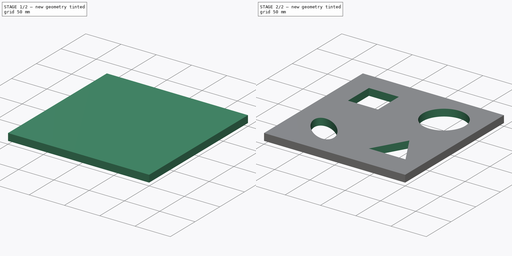
[diagram: build sequence overview — one tinted view per stage of 2, left to right]
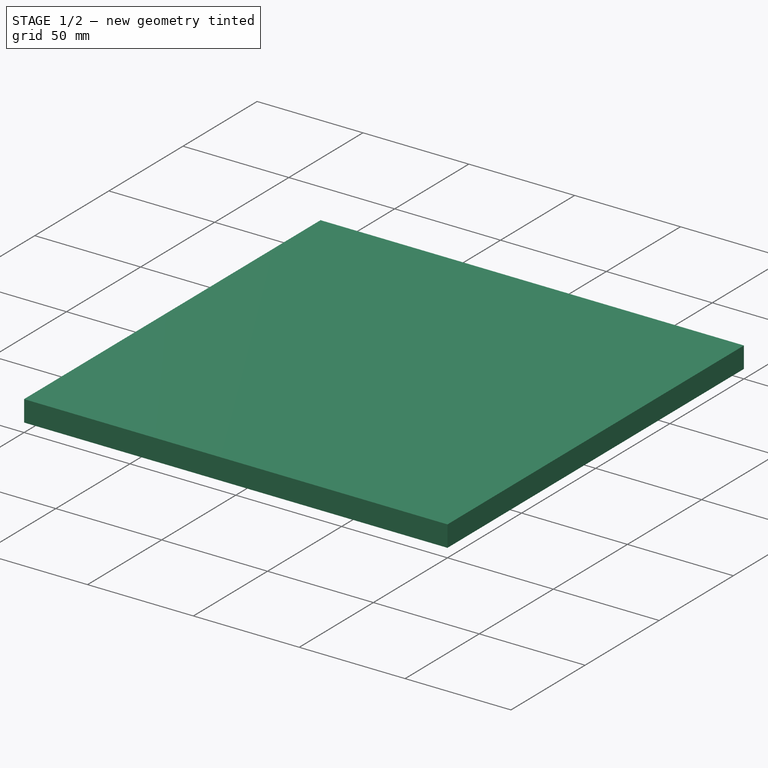
[diagram: stage 1 of 2 — iso view after this stage's code; geometry added in this stage tinted green]
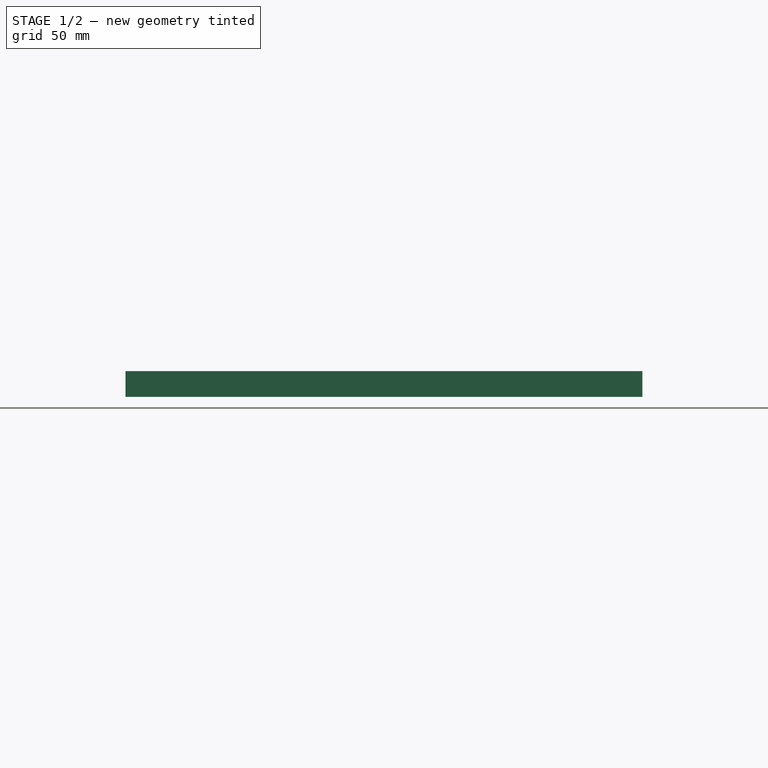
[diagram: stage 1 of 2 — front view after this stage's code; geometry added in this stage tinted green]
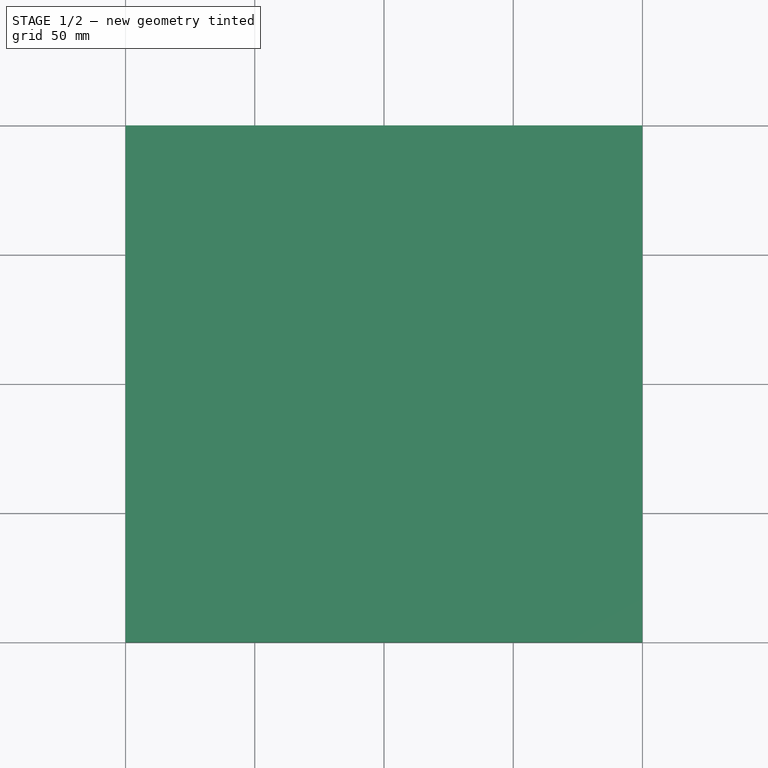
[diagram: stage 1 of 2 — top view after this stage's code; geometry added in this stage tinted green]
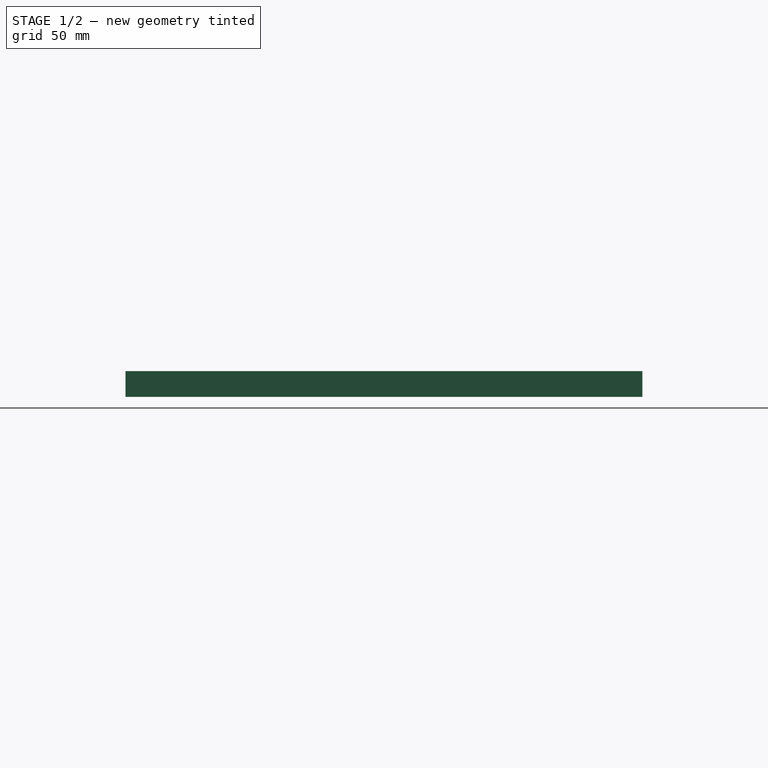
[diagram: stage 1 of 2 — right view after this stage's code; geometry added in this stage tinted green]
FCSTD DOCUMENT  (FreeCAD 0.18R16096 (Git))
Label: Profile2
License: CreativeCommons Attribution
LicenseURL: http://creativecommons.org/licenses/by/4.0/
objects: Sketcher::SketchObject×2, PartDesign::Pad×1, PartDesign::Pocket×1, PartDesign::Body×1
note: 7 computed .brp shape members not serialized (recipe doc carries the construction recipe); baked Part::Feature solids carry a one-line shape summary decoded from their .brp

FEATURE [Sketcher::SketchObject] Sketch
  MapMode = 5
  Support = -> [XY_Plane]
  sketch-geometry (4):
    g0: LineSegment StartX=-100 StartY=100 StartZ=0 EndX=100 EndY=100 EndZ=0
    g1: LineSegment StartX=100 StartY=100 StartZ=0 EndX=100 EndY=-100 EndZ=0
    g2: LineSegment StartX=100 StartY=-100 StartZ=0 EndX=-100 EndY=-100 EndZ=0
    g3: LineSegment StartX=-100 StartY=-100 StartZ=0 EndX=-100 EndY=100 EndZ=0
  constraints (11):
    c: Coincident(g0,g1)
    c: Coincident(g1,g2)
    c: Coincident(g2,g3)
    c: Coincident(g3,g0)
    c: Horizontal(g0)
    c: Horizontal(g2)
    c: Vertical(g1)
    c: Vertical(g3)
    c: Symmetric(g0,g1,g-1)
    c: Equal(g0,g3)
    c: DistanceX(g0,g0) = 200
FEATURE [PartDesign::Pad] Pad
  Length = 10
  Length2 = 100
  Profile = -> Sketch
  Type = 0
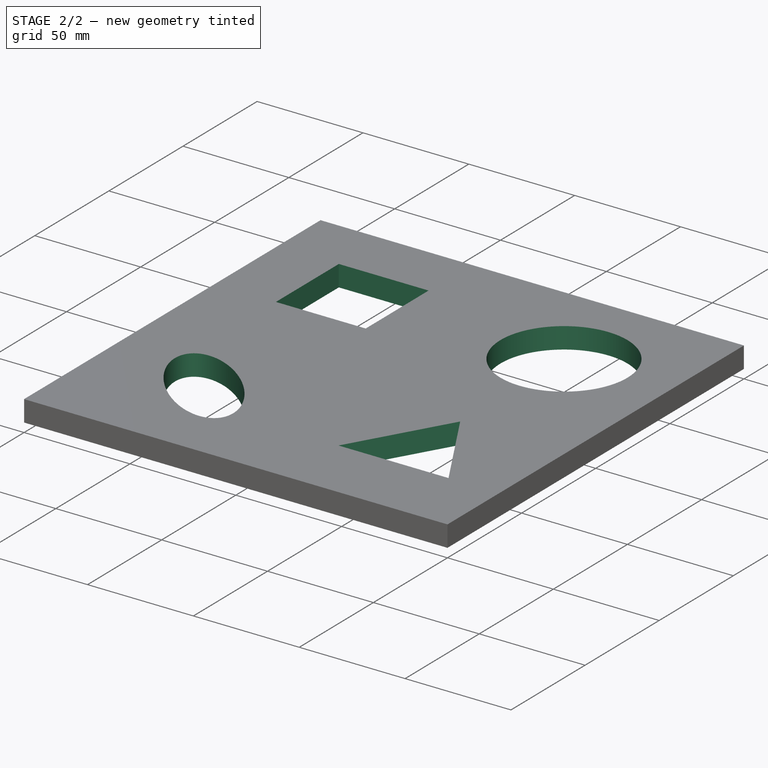
[diagram: stage 2 of 2 — iso view after this stage's code; geometry added in this stage tinted green]
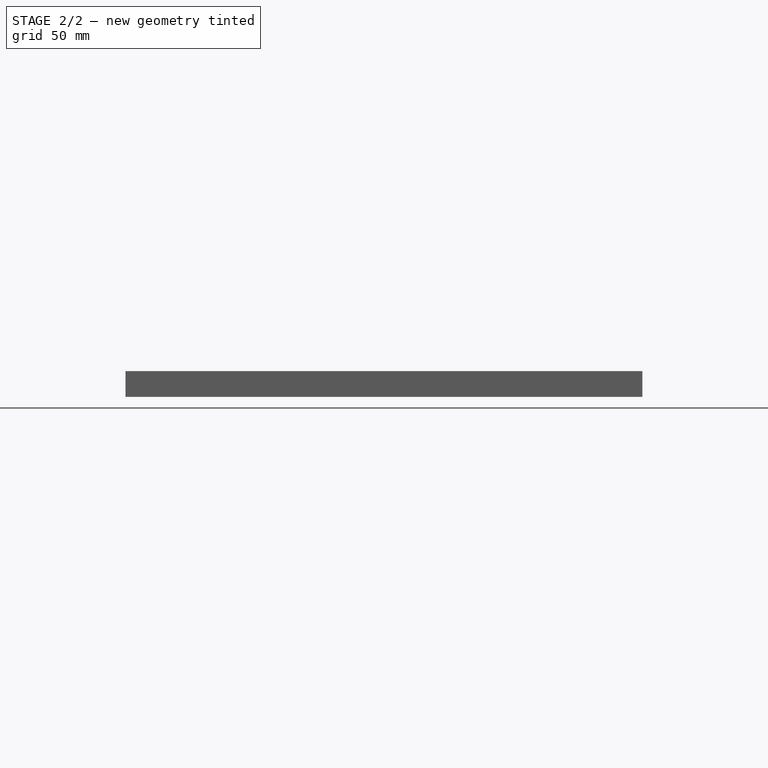
[diagram: stage 2 of 2 — front view after this stage's code; geometry added in this stage tinted green]
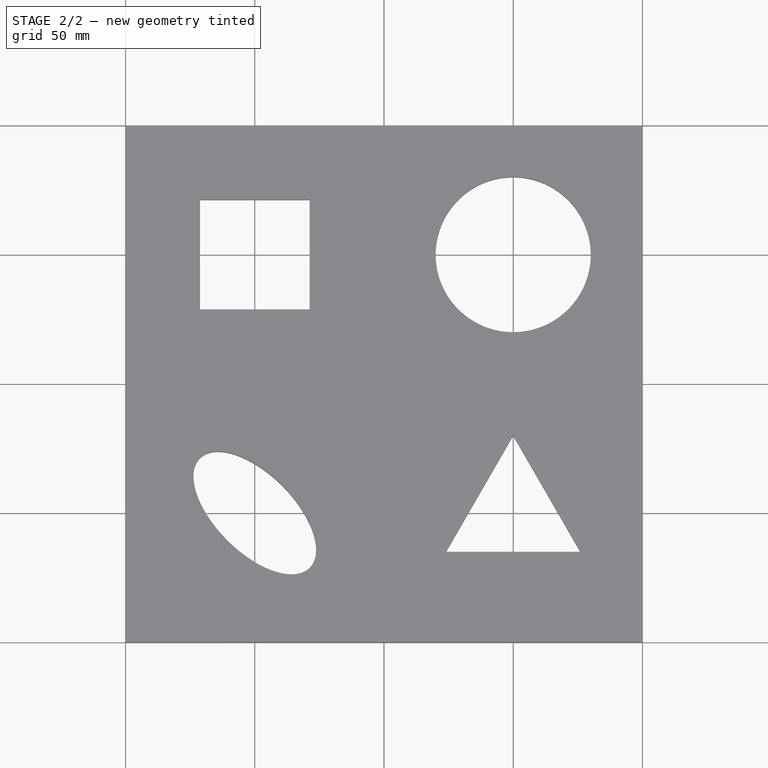
[diagram: stage 2 of 2 — top view after this stage's code; geometry added in this stage tinted green]
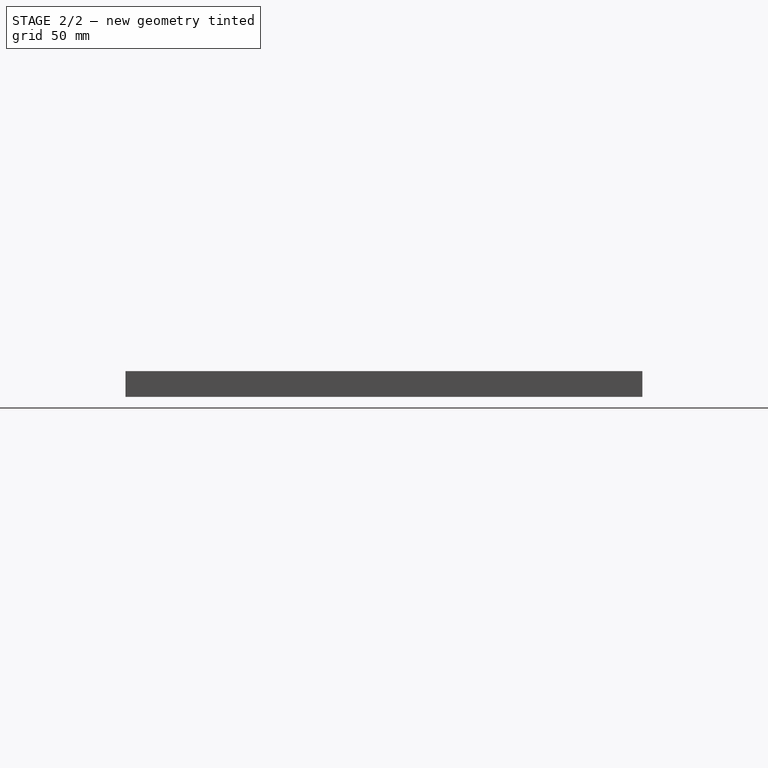
[diagram: stage 2 of 2 — right view after this stage's code; geometry added in this stage tinted green]
FEATURE [Sketcher::SketchObject] Sketch001
  MapMode = 5
  Placement = pos=(0,0,10) rot=(0,0,1;0rad)
  Support = -> [Pad]
  sketch-geometry (19):
    g0: Circle CenterX=50 CenterY=50 CenterZ=0 NormalX=0 NormalY=0 NormalZ=1 AngleXU=0 Radius=30
    g1: Ellipse CenterX=-50 CenterY=-50 CenterZ=0 NormalX=0 NormalY=0 NormalZ=1 MajorRadius=30 MinorRadius=15 AngleXU=-0.785398
    g2: LineSegment [constr] StartX=-28.7868 StartY=-71.2132 StartZ=0 EndX=-71.2132 EndY=-28.7868 EndZ=0
    g3: LineSegment [constr] StartX=-39.3934 StartY=-39.3934 StartZ=0 EndX=-60.6066 EndY=-60.6066 EndZ=0
    g4: GeomPoint X=-31.6288 Y=-68.3712 Z=0
    g5: GeomPoint X=-68.3712 Y=-31.6288 Z=0
    g6: LineSegment StartX=75.9808 StartY=-65 StartZ=0 EndX=50 EndY=-20 EndZ=0
    g7: LineSegment StartX=50 StartY=-20 StartZ=0 EndX=24.0192 EndY=-65 EndZ=0
    g8: LineSegment StartX=24.0192 StartY=-65 StartZ=0 EndX=75.9808 EndY=-65 EndZ=0
    g9: Circle [constr] CenterX=50 CenterY=-50 CenterZ=0 NormalX=0 NormalY=0 NormalZ=1 AngleXU=0 Radius=30
    g10: LineSegment StartX=-28.7868 StartY=28.7868 StartZ=0 EndX=-28.7868 EndY=71.2132 EndZ=0
    g11: LineSegment StartX=-28.7868 StartY=71.2132 StartZ=0 EndX=-71.2132 EndY=71.2132 EndZ=0
    g12: LineSegment StartX=-71.2132 StartY=71.2132 StartZ=0 EndX=-71.2132 EndY=28.7868 EndZ=0
    g13: LineSegment StartX=-71.2132 StartY=28.7868 StartZ=0 EndX=-28.7868 EndY=28.7868 EndZ=0
    g14: Circle [constr] CenterX=-50 CenterY=50 CenterZ=0 NormalX=0 NormalY=0 NormalZ=1 AngleXU=0 Radius=30
    g15: LineSegment [constr] StartX=-50 StartY=50 StartZ=0 EndX=50 EndY=50 EndZ=0
    g16: LineSegment [constr] StartX=50 StartY=50 StartZ=0 EndX=50 EndY=-50 EndZ=0
    g17: LineSegment [constr] StartX=50 StartY=-50 StartZ=0 EndX=-50 EndY=-50 EndZ=0
    g18: LineSegment [constr] StartX=-50 StartY=-50 StartZ=0 EndX=-50 EndY=50 EndZ=0
  constraints (43):
    c: InternalAlignment(g2-g5 -> g1) x4
    c: Coincident(g6,g7)
    c: Coincident(g7,g8)
    c: Coincident(g8,g6)
    c: Equal(g6,g7)
    c: Equal(g6,g8)
    c: PointOnObject(g6,g9)
    c: PointOnObject(g7,g9)
    c: PointOnObject(g8,g9)
    c: Equal(g9,g0)
    c: Coincident(g10,g11)
    c: Coincident(g11,g12)
    c: Coincident(g12,g13)
    c: Coincident(g13,g10)
    c: Equal(g10,g11)
    c: Equal(g10,g12)
    c: Equal(g10,g13)
    c: PointOnObject(g10,g14)
    c: PointOnObject(g11,g14)
    c: PointOnObject(g12,g14)
    c: PointOnObject(g13,g14)
    c: Equal(g0,g14)
    c: Coincident(g15,g16)
    c: Coincident(g16,g17)
    c: Coincident(g17,g18)
    c: Coincident(g18,g15)
    c: Horizontal(g15)
    c: Horizontal(g17)
    c: Vertical(g16)
    c: Vertical(g18)
    c: Coincident(g15,g14)
    c: Coincident(g16,g9)
    c: Coincident(g0,g15)
    c: Coincident(g1,g17)
    c: Symmetric(g14,g9,g-1)
    c: Equal(g15,g18)
    c: DistanceX(g15,g15) = 100
    c: Horizontal(g11)
    c: Radius(g0) = 30
    c: Horizontal(g8)
    c: Distance(g3) = 30
    c: Distance(g2) = 60
    c: Angle(g3) = -2.35619
FEATURE [PartDesign::Pocket] Pocket
  BaseFeature = -> Pad
  Length = 5
  Length2 = 100
  Profile = -> Sketch001
  Type = 1
FEATURE [PartDesign::Body] Body  label="Profile2"
  Group = -> [Sketch,Sketch001,Pad,Pocket]
  Origin = -> Origin
  Tip = -> Pocket
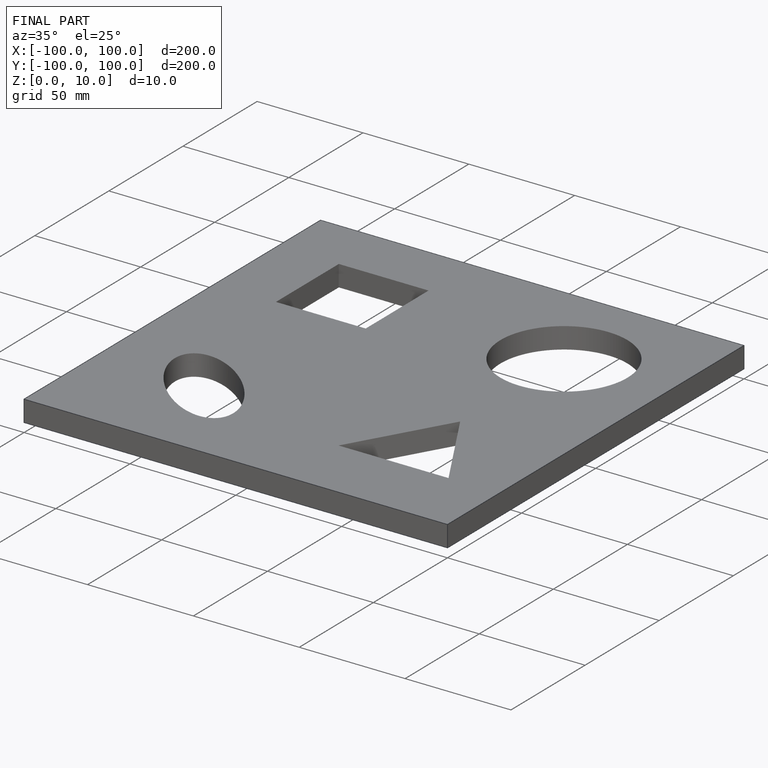
[diagram: finished part — iso view with bounding-box wireframe]
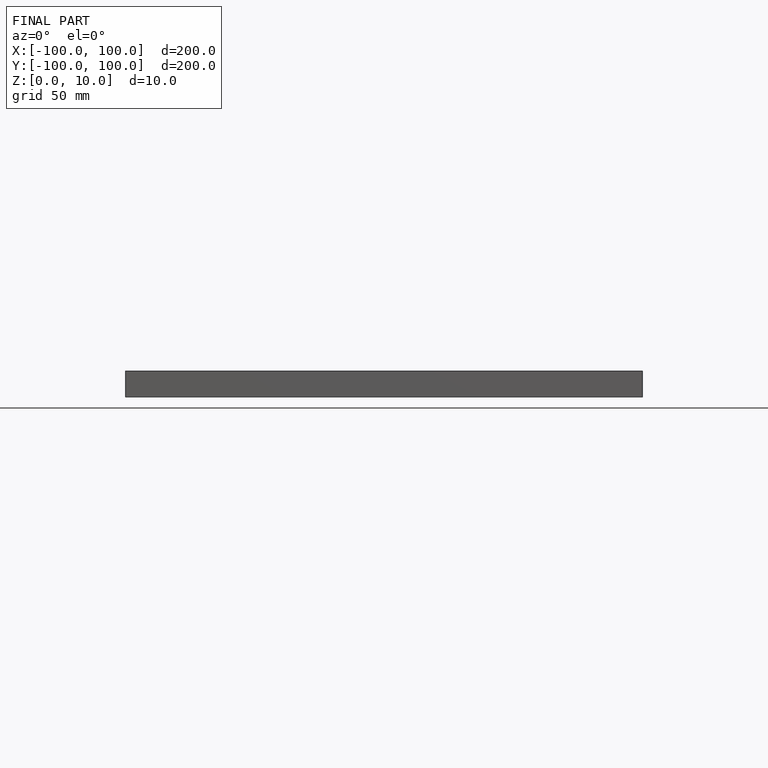
[diagram: finished part — front view with bounding-box wireframe]
